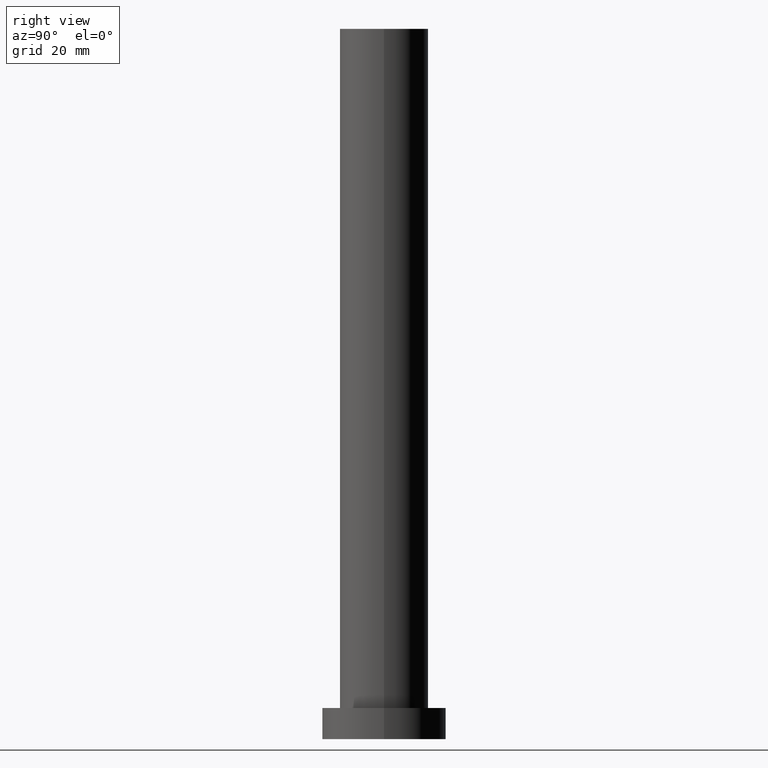
[diagram: clean part render]
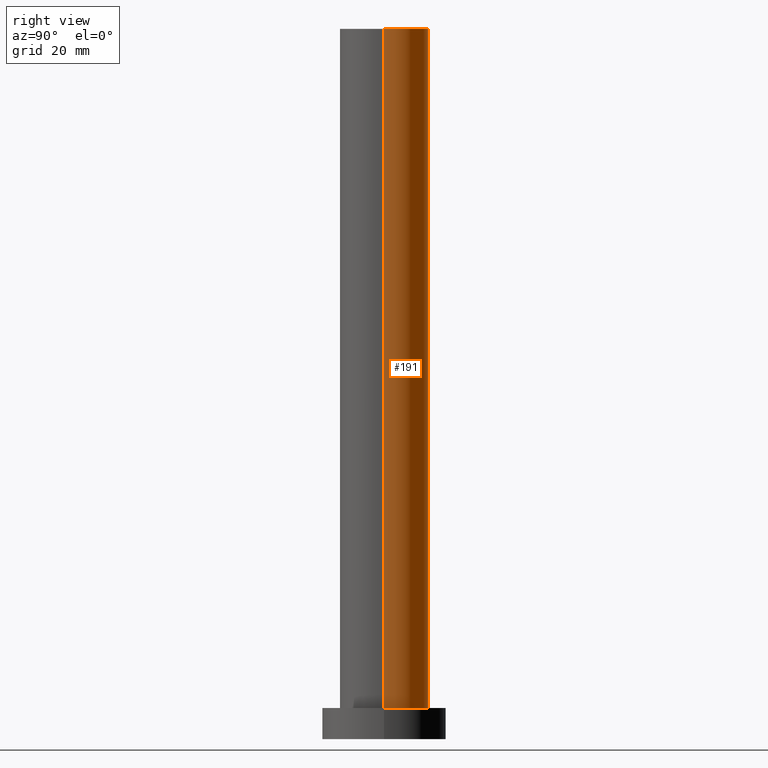
[diagram: same view with one face highlighted and labeled with its STEP entity id]
A machine part, right view. The second image highlights one B-rep face of the part: STEP entity #191.
In plain terms, the highlighted cylindrical surface (partial cylindrical patch) has radius 10 mm, axis along (-0, -0, -1).
Its self-contained STEP definition (entity closure, byte-faithful):
#30 = VECTOR ( 'NONE', #249, 1000.000000000000000 ) ;
#38 = CARTESIAN_POINT ( 'NONE',  ( 0.000000000000000000, 0.000000000000000000, 160.0000000000000000 ) ) ;
#46 = LINE ( 'NONE', #121, #57 ) ;
#57 = VECTOR ( 'NONE', #107, 1000.000000000000000 ) ;
#61 = VERTEX_POINT ( 'NONE', #187 ) ;
#64 = ORIENTED_EDGE ( 'NONE', *, *, #143, .T. ) ;
#70 = CYLINDRICAL_SURFACE ( 'NONE', #179, 10.00000000000000000 ) ;
#71 = DIRECTION ( 'NONE',  ( 0.000000000000000000, 0.000000000000000000, 1.000000000000000000 ) ) ;
#72 = CIRCLE ( 'NONE', #215, 10.00000000000000000 ) ;
#78 = CARTESIAN_POINT ( 'NONE',  ( -10.00000000000000000, 0.000000000000000000, 7.000000000000000000 ) ) ;
#83 = CARTESIAN_POINT ( 'NONE',  ( 0.000000000000000000, 0.000000000000000000, 7.000000000000000000 ) ) ;
#84 = CARTESIAN_POINT ( 'NONE',  ( -10.00000000000000000, 0.000000000000000000, 160.0000000000000000 ) ) ;
#85 = EDGE_CURVE ( 'NONE', #61, #180, #46, .T. ) ;
#88 = CIRCLE ( 'NONE', #141, 10.00000000000000000 ) ;
#95 = ORIENTED_EDGE ( 'NONE', *, *, #85, .T. ) ;
#107 = DIRECTION ( 'NONE',  ( -0.000000000000000000, -0.000000000000000000, -1.000000000000000000 ) ) ;
#121 = CARTESIAN_POINT ( 'NONE',  ( 10.00000000000000000, 1.224646799147353256E-15, 160.0000000000000000 ) ) ;
#123 = DIRECTION ( 'NONE',  ( -0.000000000000000000, -0.000000000000000000, -1.000000000000000000 ) ) ;
#129 = CARTESIAN_POINT ( 'NONE',  ( -10.00000000000000000, 0.000000000000000000, 160.0000000000000000 ) ) ;
#137 = DIRECTION ( 'NONE',  ( 1.000000000000000000, 0.000000000000000000, 0.000000000000000000 ) ) ;
#141 = AXIS2_PLACEMENT_3D ( 'NONE', #83, #71, #148 ) ;
#143 = EDGE_CURVE ( 'NONE', #180, #212, #88, .T. ) ;
#145 = CARTESIAN_POINT ( 'NONE',  ( 0.000000000000000000, 0.000000000000000000, 160.0000000000000000 ) ) ;
#148 = DIRECTION ( 'NONE',  ( 1.000000000000000000, 0.000000000000000000, 0.000000000000000000 ) ) ;
#151 = DIRECTION ( 'NONE',  ( -1.000000000000000000, 0.000000000000000000, 0.000000000000000000 ) ) ;
#164 = CARTESIAN_POINT ( 'NONE',  ( 10.00000000000000000, 1.224646799147353256E-15, 7.000000000000000000 ) ) ;
#173 = VERTEX_POINT ( 'NONE', #84 ) ;
#179 = AXIS2_PLACEMENT_3D ( 'NONE', #145, #123, #151 ) ;
#180 = VERTEX_POINT ( 'NONE', #164 ) ;
#181 = ORIENTED_EDGE ( 'NONE', *, *, #233, .F. ) ;
#187 = CARTESIAN_POINT ( 'NONE',  ( 10.00000000000000000, 1.224646799147353256E-15, 160.0000000000000000 ) ) ;
#191 = ADVANCED_FACE ( 'NONE', ( #236 ), #70, .T. ) ;
#192 = DIRECTION ( 'NONE',  ( 0.000000000000000000, 0.000000000000000000, 1.000000000000000000 ) ) ;
#210 = EDGE_CURVE ( 'NONE', #61, #173, #72, .T. ) ;
#212 = VERTEX_POINT ( 'NONE', #78 ) ;
#215 = AXIS2_PLACEMENT_3D ( 'NONE', #38, #192, #137 ) ;
#217 = EDGE_LOOP ( 'NONE', ( #248, #95, #64, #181 ) ) ;
#229 = LINE ( 'NONE', #129, #30 ) ;
#233 = EDGE_CURVE ( 'NONE', #173, #212, #229, .T. ) ;
#236 = FACE_OUTER_BOUND ( 'NONE', #217, .T. ) ;
#248 = ORIENTED_EDGE ( 'NONE', *, *, #210, .F. ) ;
#249 = DIRECTION ( 'NONE',  ( -0.000000000000000000, -0.000000000000000000, -1.000000000000000000 ) ) ;